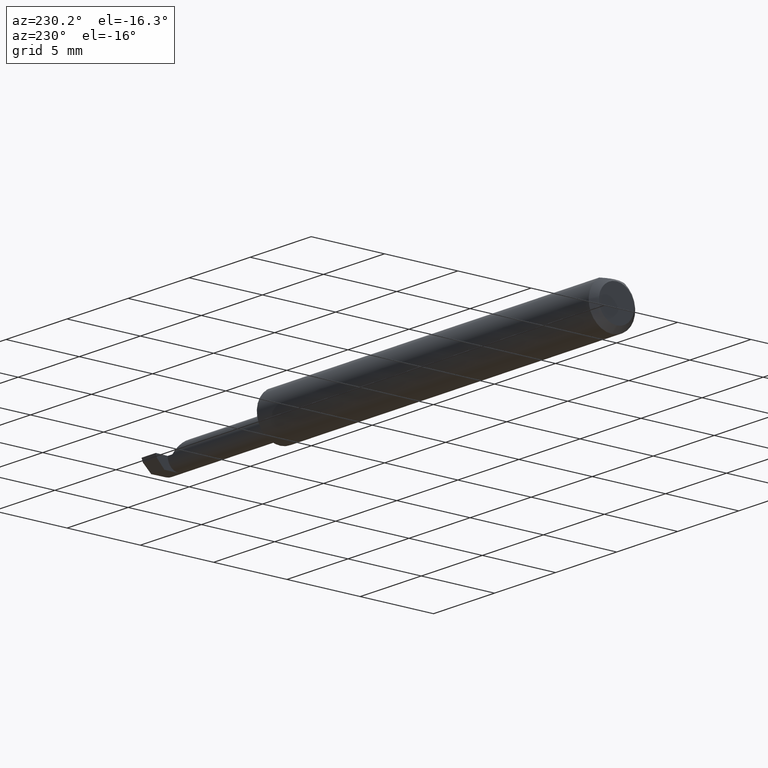
[diagram: clean part render]
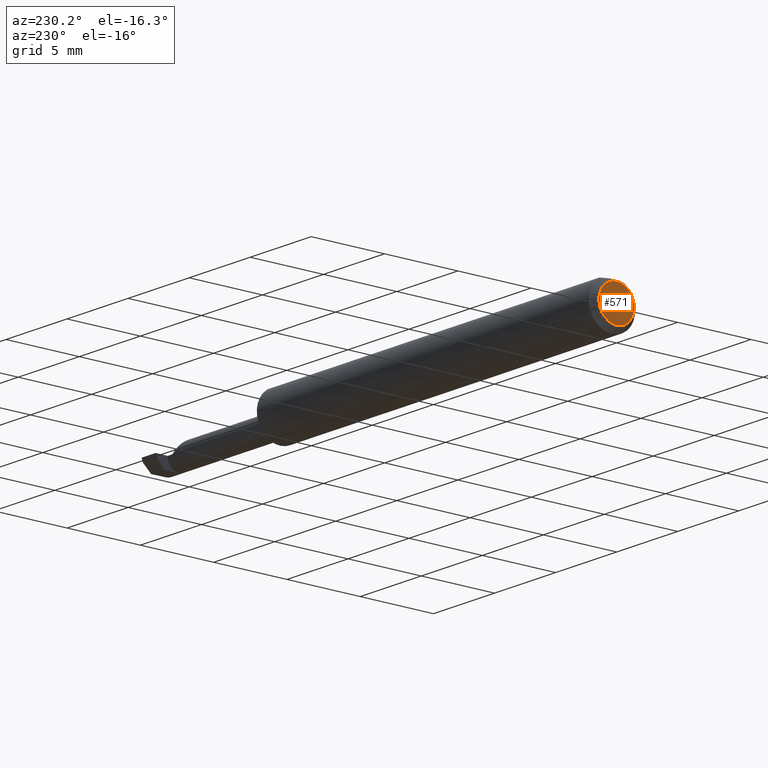
[diagram: same view with one face highlighted and labeled with its STEP entity id]
A machine part, auxiliary view. The second image highlights one B-rep face of the part: STEP entity #571.
In plain terms, the highlighted planar face has unit normal (1, 0, 0).
Its self-contained STEP definition (entity closure, byte-faithful):
#17 = DIRECTION ( 'NONE',  ( -1.000000000000000000, -0.000000000000000000, -0.000000000000000000 ) ) ;
#30 = ORIENTED_EDGE ( 'NONE', *, *, #38, .T. ) ;
#38 = EDGE_CURVE ( 'NONE', #697, #715, #47, .T. ) ;
#47 = CIRCLE ( 'NONE', #203, 0.04749999999999999362 ) ;
#49 = EDGE_CURVE ( 'NONE', #715, #697, #547, .T. ) ;
#64 = CARTESIAN_POINT ( 'NONE',  ( 0.000000000000000000, 0.000000000000000000, 0.000000000000000000 ) ) ;
#70 = AXIS2_PLACEMENT_3D ( 'NONE', #303, #75, #578 ) ;
#72 = DIRECTION ( 'NONE',  ( 0.000000000000000000, 0.000000000000000000, -1.000000000000000000 ) ) ;
#73 = DIRECTION ( 'NONE',  ( 0.000000000000000000, 0.000000000000000000, 1.000000000000000000 ) ) ;
#75 = DIRECTION ( 'NONE',  ( -1.000000000000000000, -0.000000000000000000, -0.000000000000000000 ) ) ;
#166 = AXIS2_PLACEMENT_3D ( 'NONE', #64, #684, #72 ) ;
#203 = AXIS2_PLACEMENT_3D ( 'NONE', #352, #17, #73 ) ;
#275 = ORIENTED_EDGE ( 'NONE', *, *, #49, .T. ) ;
#303 = CARTESIAN_POINT ( 'NONE',  ( 0.000000000000000000, 0.000000000000000000, 0.000000000000000000 ) ) ;
#352 = CARTESIAN_POINT ( 'NONE',  ( 0.000000000000000000, 0.000000000000000000, 0.000000000000000000 ) ) ;
#355 = CARTESIAN_POINT ( 'NONE',  ( 0.000000000000000000, 0.000000000000000000, -0.04749999999999999362 ) ) ;
#401 = EDGE_LOOP ( 'NONE', ( #30, #275 ) ) ;
#415 = PLANE ( 'NONE',  #166 ) ;
#426 = CARTESIAN_POINT ( 'NONE',  ( 0.000000000000000000, 6.735557395310443132E-18, 0.04749999999999999362 ) ) ;
#547 = CIRCLE ( 'NONE', #70, 0.04749999999999999362 ) ;
#571 = ADVANCED_FACE ( 'NONE', ( #626 ), #415, .F. ) ;
#578 = DIRECTION ( 'NONE',  ( 0.000000000000000000, 0.000000000000000000, 1.000000000000000000 ) ) ;
#626 = FACE_OUTER_BOUND ( 'NONE', #401, .T. ) ;
#684 = DIRECTION ( 'NONE',  ( 1.000000000000000000, 0.000000000000000000, 0.000000000000000000 ) ) ;
#697 = VERTEX_POINT ( 'NONE', #355 ) ;
#715 = VERTEX_POINT ( 'NONE', #426 ) ;